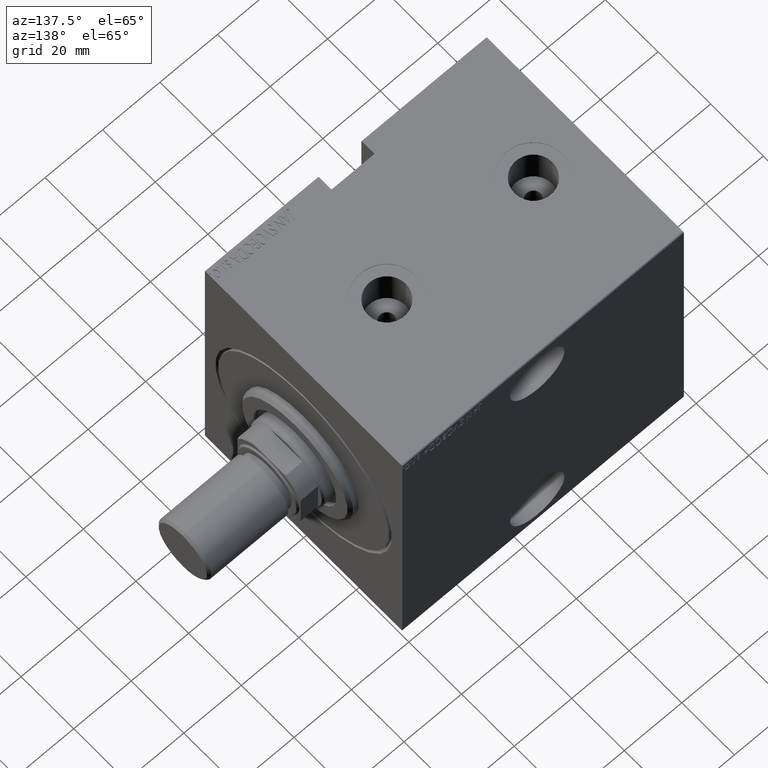
[diagram: clean part render]
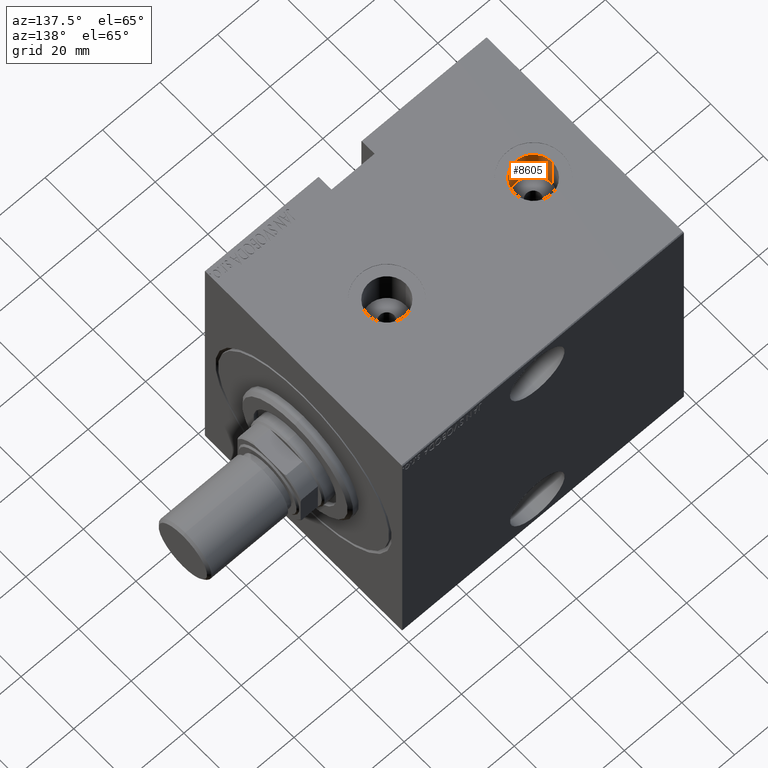
[diagram: same view with one face highlighted and labeled with its STEP entity id]
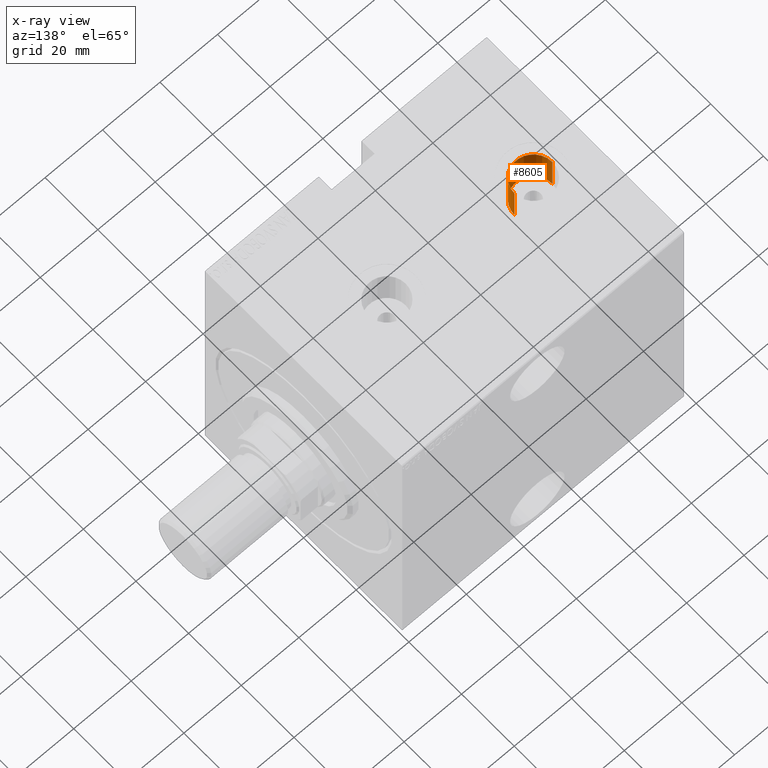
[diagram: x-ray of the same camera — body ghosted, the highlighted face saturated]
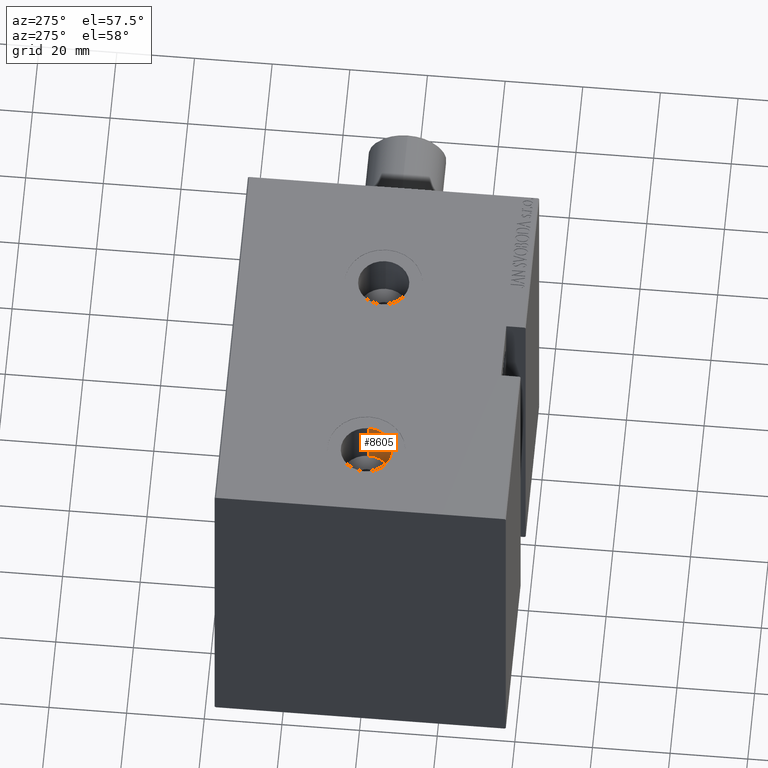
[diagram: same view with one face highlighted and labeled with its STEP entity id]
A machine part, auxiliary view. The second image highlights one B-rep face of the part: STEP entity #8605.
The next image is the same camera in x-ray: the body ghosted, the highlighted face saturated — about 0% of this face is hidden behind the body in this view.
A second angle (auxiliary view) of the same face is appended — the face is thin or edge-on in the first view.
In plain terms, the highlighted cylindrical surface (edge-blend (fillet) strip) has radius 6.58 mm, axis along (0, 0, 1).
Its self-contained STEP definition (entity closure, byte-faithful):
#208 = ORIENTED_EDGE ( 'NONE', *, *, #35146, .T. ) ;
#1327 = FACE_OUTER_BOUND ( 'NONE', #3413, .T. ) ;
#1374 = AXIS2_PLACEMENT_3D ( 'NONE', #8797, #17811, #4402 ) ;
#2654 = VERTEX_POINT ( 'NONE', #31485 ) ;
#3413 = EDGE_LOOP ( 'NONE', ( #4893, #19946, #208, #25314 ) ) ;
#3616 = VERTEX_POINT ( 'NONE', #40427 ) ;
#4402 = DIRECTION ( 'NONE',  ( 1.000000000000000000, 0.000000000000000000, 0.000000000000000000 ) ) ;
#4893 = ORIENTED_EDGE ( 'NONE', *, *, #35209, .F. ) ;
#8228 = CARTESIAN_POINT ( 'NONE',  ( 80.00000000000001421, -9.251858538542975377E-15, 36.74000000000000909 ) ) ;
#8605 = ADVANCED_FACE ( 'NONE', ( #1327 ), #25258, .F. ) ;
#8797 = CARTESIAN_POINT ( 'NONE',  ( 80.00000000000001421, -9.251858538542975377E-15, 36.74000000000000909 ) ) ;
#10618 = VERTEX_POINT ( 'NONE', #18370 ) ;
#11484 = AXIS2_PLACEMENT_3D ( 'NONE', #38775, #36350, #42913 ) ;
#13680 = DIRECTION ( 'NONE',  ( -0.000000000000000000, -0.000000000000000000, 1.000000000000000000 ) ) ;
#14966 = CIRCLE ( 'NONE', #11484, 6.580000000000002736 ) ;
#17811 = DIRECTION ( 'NONE',  ( -0.000000000000000000, -0.000000000000000000, 1.000000000000000000 ) ) ;
#18370 = CARTESIAN_POINT ( 'NONE',  ( 73.42000000000001592, -8.446040944704016336E-15, 49.90000000000000568 ) ) ;
#19946 = ORIENTED_EDGE ( 'NONE', *, *, #21945, .F. ) ;
#21731 = EDGE_CURVE ( 'NONE', #2654, #10618, #14966, .T. ) ;
#21945 = EDGE_CURVE ( 'NONE', #3616, #24727, #22659, .T. ) ;
#22659 = CIRCLE ( 'NONE', #32497, 6.580000000000002736 ) ;
#23996 = LINE ( 'NONE', #30133, #27881 ) ;
#24727 = VERTEX_POINT ( 'NONE', #31478 ) ;
#25258 = CYLINDRICAL_SURFACE ( 'NONE', #1374, 6.580000000000002736 ) ;
#25314 = ORIENTED_EDGE ( 'NONE', *, *, #21731, .T. ) ;
#26853 = CARTESIAN_POINT ( 'NONE',  ( 73.42000000000001592, -8.446040944704016336E-15, 36.74000000000000909 ) ) ;
#27764 = DIRECTION ( 'NONE',  ( 0.000000000000000000, 0.000000000000000000, 1.000000000000000000 ) ) ;
#27881 = VECTOR ( 'NONE', #13680, 1000.000000000000000 ) ;
#30133 = CARTESIAN_POINT ( 'NONE',  ( 86.58000000000001251, -9.251858538542975377E-15, 36.74000000000000909 ) ) ;
#31478 = CARTESIAN_POINT ( 'NONE',  ( 73.42000000000001592, -8.446040944704016336E-15, 36.74000000000000909 ) ) ;
#31485 = CARTESIAN_POINT ( 'NONE',  ( 86.58000000000001251, -9.251858538542975377E-15, 49.90000000000000568 ) ) ;
#32497 = AXIS2_PLACEMENT_3D ( 'NONE', #8228, #27764, #38505 ) ;
#35146 = EDGE_CURVE ( 'NONE', #3616, #2654, #23996, .T. ) ;
#35209 = EDGE_CURVE ( 'NONE', #24727, #10618, #40010, .T. ) ;
#36350 = DIRECTION ( 'NONE',  ( 0.000000000000000000, 0.000000000000000000, 1.000000000000000000 ) ) ;
#38311 = VECTOR ( 'NONE', #40222, 1000.000000000000000 ) ;
#38505 = DIRECTION ( 'NONE',  ( 1.000000000000000000, 0.000000000000000000, 0.000000000000000000 ) ) ;
#38775 = CARTESIAN_POINT ( 'NONE',  ( 80.00000000000001421, -9.251858538542975377E-15, 49.90000000000000568 ) ) ;
#40010 = LINE ( 'NONE', #26853, #38311 ) ;
#40222 = DIRECTION ( 'NONE',  ( -0.000000000000000000, -0.000000000000000000, 1.000000000000000000 ) ) ;
#40427 = CARTESIAN_POINT ( 'NONE',  ( 86.58000000000001251, -9.251858538542975377E-15, 36.74000000000000909 ) ) ;
#42913 = DIRECTION ( 'NONE',  ( 1.000000000000000000, 0.000000000000000000, 0.000000000000000000 ) ) ;